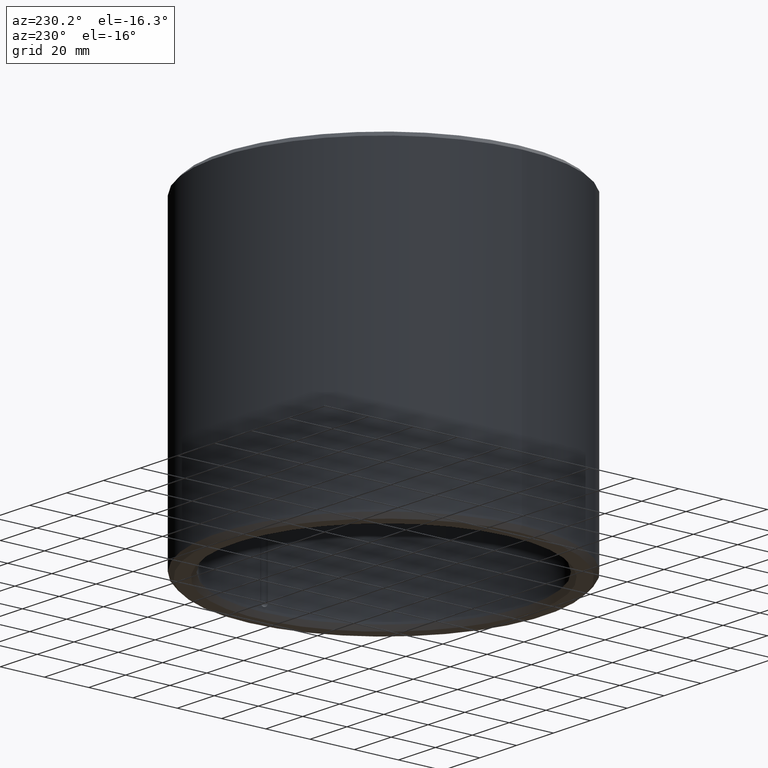
[diagram: clean part render]
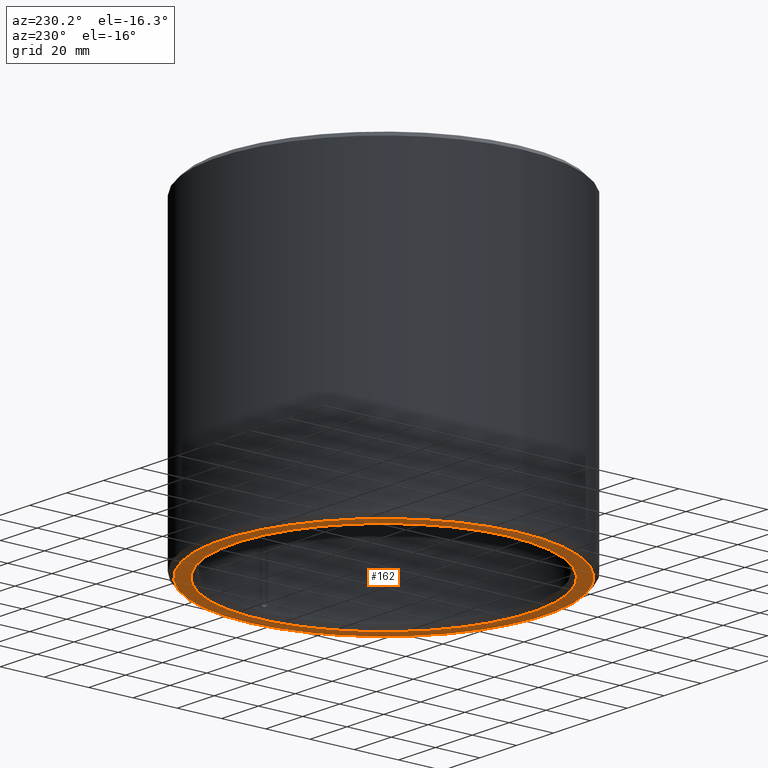
[diagram: same view with one face highlighted and labeled with its STEP entity id]
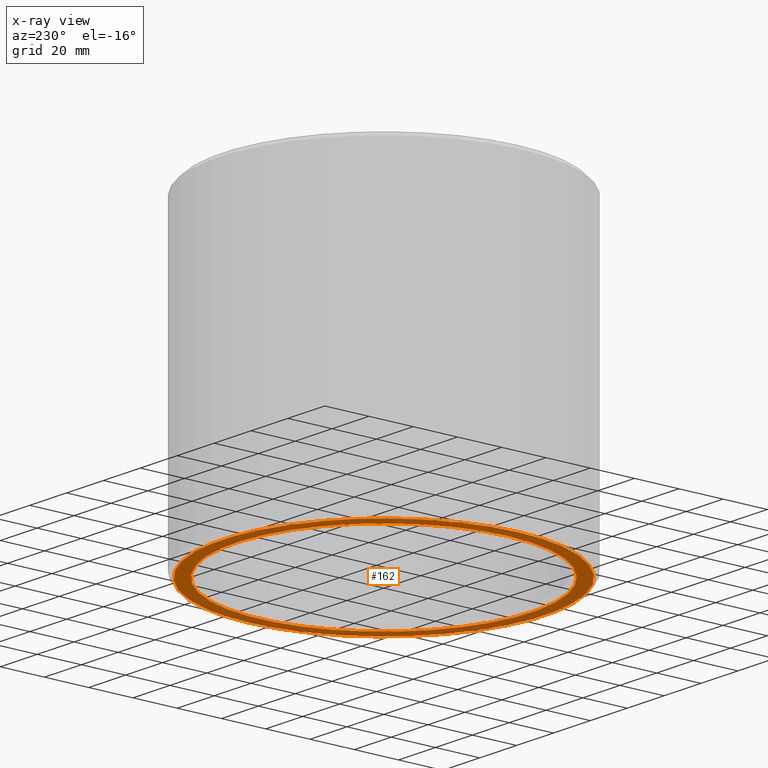
[diagram: x-ray of the same camera — body ghosted, the highlighted face saturated]
A machine part, auxiliary view. The second image highlights one B-rep face of the part: STEP entity #162.
The next image is the same camera in x-ray: the body ghosted, the highlighted face saturated — about 0% of this face is hidden behind the body in this view.
In plain terms, the highlighted planar face has unit normal (-0, 0, -1).
Its self-contained STEP definition (entity closure, byte-faithful):
#162=ADVANCED_FACE('',(#192,#193),#194,.T.);
#192=FACE_OUTER_BOUND('',#4077,.T.);
#193=FACE_BOUND('',#4078,.T.);
#194=PLANE('',#4079);
#4077=EDGE_LOOP('',(#7991));
#4078=EDGE_LOOP('',(#7992));
#4079=AXIS2_PLACEMENT_3D('',#7993,#7994,#7995);
#7991=ORIENTED_EDGE('',*,*,#8028,.T.);
#7992=ORIENTED_EDGE('',*,*,#8029,.F.);
#7993=CARTESIAN_POINT('',(0.067,0.0,4.71627945031194E-018));
#7994=DIRECTION('',(0.0,-6.12323399573677E-017,-1.0));
#7995=DIRECTION('',(0.0,1.0,-6.12323399573677E-017));
#8028=EDGE_CURVE('',#8062,#8062,#8063,.T.);
#8029=EDGE_CURVE('',#8064,#8064,#8065,.T.);
#8062=VERTEX_POINT('',#8334);
#8063=CIRCLE('',#8335,0.073);
#8064=VERTEX_POINT('',#8336);
#8065=CIRCLE('',#8337,0.067);
#8334=CARTESIAN_POINT('',(0.0,0.073,6.25789393794031E-019));
#8335=AXIS2_PLACEMENT_3D('',#8372,#8373,#8374);
#8336=CARTESIAN_POINT('',(0.0,0.067,2.34241912798384E-019));
#8337=AXIS2_PLACEMENT_3D('',#8375,#8376,#8377);
#8372=CARTESIAN_POINT('',(0.0,0.0,5.09575021068187E-018));
#8373=DIRECTION('',(0.0,-6.12323399573677E-017,-1.0));
#8374=DIRECTION('',(0.0,1.0,-6.12323399573677E-017));
#8375=CARTESIAN_POINT('',(0.0,0.0,4.33680868994202E-018));
#8376=DIRECTION('',(0.0,-6.12323399573677E-017,-1.0));
#8377=DIRECTION('',(0.0,1.0,-6.12323399573677E-017));